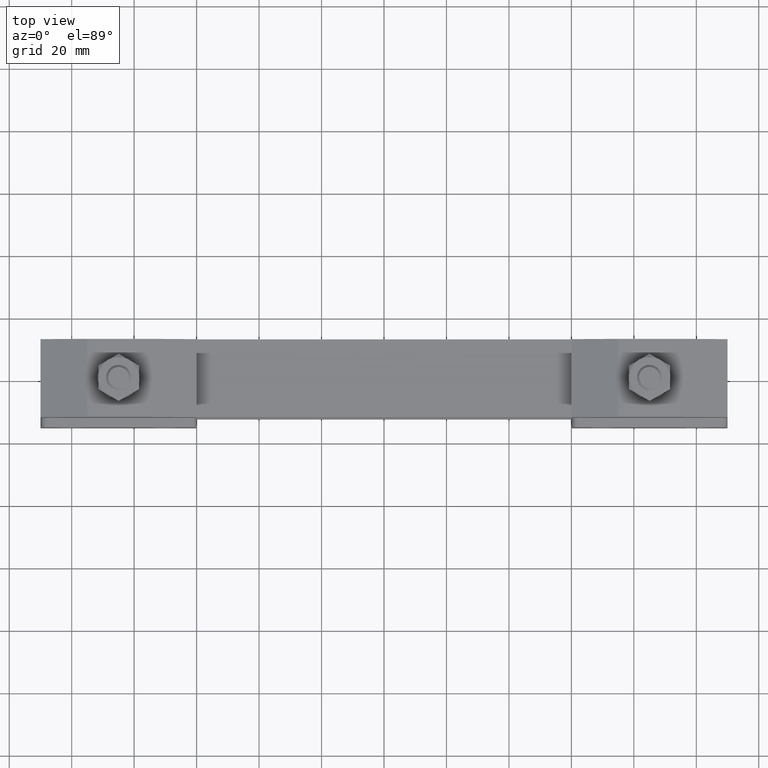
[diagram: clean part render]
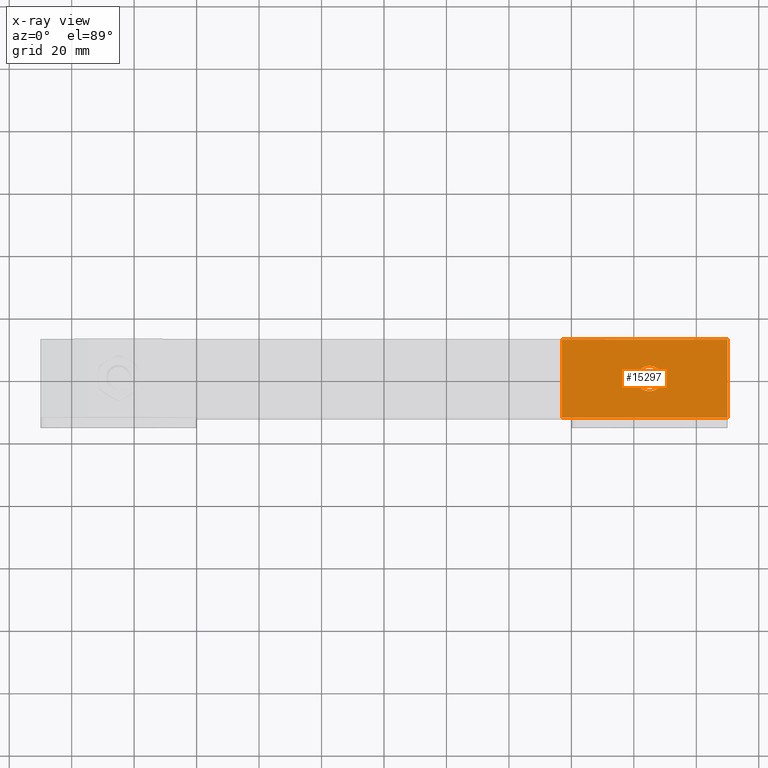
[diagram: x-ray — body ghosted, one internal face saturated and labeled with its STEP entity id]
A machine part, top view, then the same camera in x-ray: the body is ghosted and one INTERNAL B-rep face — a face not visible from any outside direction — is saturated and labeled: STEP entity #15297.
In plain terms, the highlighted planar face has unit normal (-0, 0, 1).
Its self-contained STEP definition (entity closure, byte-faithful):
#383 = LINE ( 'NONE', #1701, #11939 ) ;
#573 = VECTOR ( 'NONE', #15709, 1000.000000000000000 ) ;
#785 = CARTESIAN_POINT ( 'NONE',  ( 110.0000000000000000, -12.50000000000020100, 29.00000000000000000 ) ) ;
#876 = EDGE_CURVE ( 'NONE', #17095, #16667, #18181, .T. ) ;
#950 = CARTESIAN_POINT ( 'NONE',  ( 85.00000000000000000, 1.876774864831120200E-014, 29.00000000000000000 ) ) ;
#1701 = CARTESIAN_POINT ( 'NONE',  ( 110.0000000000000000, 12.50000000000024000, 29.00000000000000000 ) ) ;
#1819 = PLANE ( 'NONE',  #6070 ) ;
#2686 = VERTEX_POINT ( 'NONE', #11024 ) ;
#2756 = FACE_BOUND ( 'NONE', #19589, .T. ) ;
#4714 = ORIENTED_EDGE ( 'NONE', *, *, #18812, .T. ) ;
#6070 = AXIS2_PLACEMENT_3D ( 'NONE', #16052, #21253, #7080 ) ;
#6573 = ORIENTED_EDGE ( 'NONE', *, *, #15593, .F. ) ;
#6742 = ORIENTED_EDGE ( 'NONE', *, *, #11158, .T. ) ;
#7080 = DIRECTION ( 'NONE',  ( -1.000000000000000000, 4.091908403054195000E-017, -6.938893903907250100E-016 ) ) ;
#7257 = AXIS2_PLACEMENT_3D ( 'NONE', #20327, #16754, #13138 ) ;
#7519 = CARTESIAN_POINT ( 'NONE',  ( 89.10000000000000900, 1.779142297946465900E-014, 28.99999999999999600 ) ) ;
#8394 = CIRCLE ( 'NONE', #14466, 4.100000000000006800 ) ;
#8426 = VERTEX_POINT ( 'NONE', #10144 ) ;
#9402 = EDGE_LOOP ( 'NONE', ( #21045, #6742, #19267, #4714 ) ) ;
#10144 = CARTESIAN_POINT ( 'NONE',  ( 80.90000000000000600, 1.893551689283642200E-014, 28.99999999999999600 ) ) ;
#11024 = CARTESIAN_POINT ( 'NONE',  ( 57.00000000000000000, -12.50000000000022000, 29.00000000000000000 ) ) ;
#11158 = EDGE_CURVE ( 'NONE', #16667, #18648, #383, .T. ) ;
#11340 = VECTOR ( 'NONE', #12885, 1000.000000000000000 ) ;
#11418 = DIRECTION ( 'NONE',  ( -1.000000000000000000, 4.091908403054164800E-017, -8.462065736472216000E-016 ) ) ;
#11939 = VECTOR ( 'NONE', #13951, 1000.000000000000000 ) ;
#12064 = CARTESIAN_POINT ( 'NONE',  ( 57.00000000000000000, -12.50000000000022000, 29.00000000000000000 ) ) ;
#12800 = ORIENTED_EDGE ( 'NONE', *, *, #15562, .F. ) ;
#12885 = DIRECTION ( 'NONE',  ( 1.000000000000000000, -4.091908403054195000E-017, 6.938893903907250100E-016 ) ) ;
#13138 = DIRECTION ( 'NONE',  ( -1.000000000000000000, 4.091908403054164800E-017, -8.462065736472216000E-016 ) ) ;
#13370 = CIRCLE ( 'NONE', #7257, 4.100000000000006800 ) ;
#13951 = DIRECTION ( 'NONE',  ( -1.000000000000000000, 4.091908403054195000E-017, -6.938893903907250100E-016 ) ) ;
#13952 = VERTEX_POINT ( 'NONE', #7519 ) ;
#14466 = AXIS2_PLACEMENT_3D ( 'NONE', #950, #22039, #11418 ) ;
#15297 = ADVANCED_FACE ( 'NONE', ( #2756, #15416 ), #1819, .T. ) ;
#15416 = FACE_OUTER_BOUND ( 'NONE', #9402, .T. ) ;
#15462 = LINE ( 'NONE', #12064, #573 ) ;
#15562 = EDGE_CURVE ( 'NONE', #13952, #8426, #13370, .T. ) ;
#15593 = EDGE_CURVE ( 'NONE', #8426, #13952, #8394, .T. ) ;
#15703 = CARTESIAN_POINT ( 'NONE',  ( 110.0000000000000000, -12.50000000000020100, 29.00000000000000000 ) ) ;
#15709 = DIRECTION ( 'NONE',  ( -7.010321843197380300E-017, -1.000000000000000000, -6.129044733417934200E-016 ) ) ;
#15729 = CARTESIAN_POINT ( 'NONE',  ( 57.00000000000000000, 12.50000000000022000, 29.00000000000000000 ) ) ;
#15831 = DIRECTION ( 'NONE',  ( 7.010321843197380300E-017, 1.000000000000000000, 6.129044733417934200E-016 ) ) ;
#16023 = CARTESIAN_POINT ( 'NONE',  ( 110.0000000000000000, 12.50000000000024000, 29.00000000000000000 ) ) ;
#16052 = CARTESIAN_POINT ( 'NONE',  ( 110.0000000000000000, 12.50000000000024000, 29.00000000000000000 ) ) ;
#16056 = CARTESIAN_POINT ( 'NONE',  ( 110.0000000000000000, -12.50000000000020100, 29.00000000000000000 ) ) ;
#16667 = VERTEX_POINT ( 'NONE', #16023 ) ;
#16754 = DIRECTION ( 'NONE',  ( 6.938893903907250100E-016, 6.129044733418019900E-016, 1.000000000000000000 ) ) ;
#16783 = VECTOR ( 'NONE', #15831, 1000.000000000000000 ) ;
#16868 = LINE ( 'NONE', #785, #11340 ) ;
#17095 = VERTEX_POINT ( 'NONE', #15703 ) ;
#18181 = LINE ( 'NONE', #16056, #16783 ) ;
#18648 = VERTEX_POINT ( 'NONE', #15729 ) ;
#18812 = EDGE_CURVE ( 'NONE', #2686, #17095, #16868, .T. ) ;
#19267 = ORIENTED_EDGE ( 'NONE', *, *, #22861, .T. ) ;
#19589 = EDGE_LOOP ( 'NONE', ( #6573, #12800 ) ) ;
#20327 = CARTESIAN_POINT ( 'NONE',  ( 85.00000000000000000, 1.876774864831120200E-014, 29.00000000000000000 ) ) ;
#21045 = ORIENTED_EDGE ( 'NONE', *, *, #876, .T. ) ;
#21253 = DIRECTION ( 'NONE',  ( -6.938893903907250100E-016, 6.129044733418019900E-016, 1.000000000000000000 ) ) ;
#22039 = DIRECTION ( 'NONE',  ( 6.938893903907250100E-016, 6.129044733418019900E-016, 1.000000000000000000 ) ) ;
#22861 = EDGE_CURVE ( 'NONE', #18648, #2686, #15462, .T. ) ;